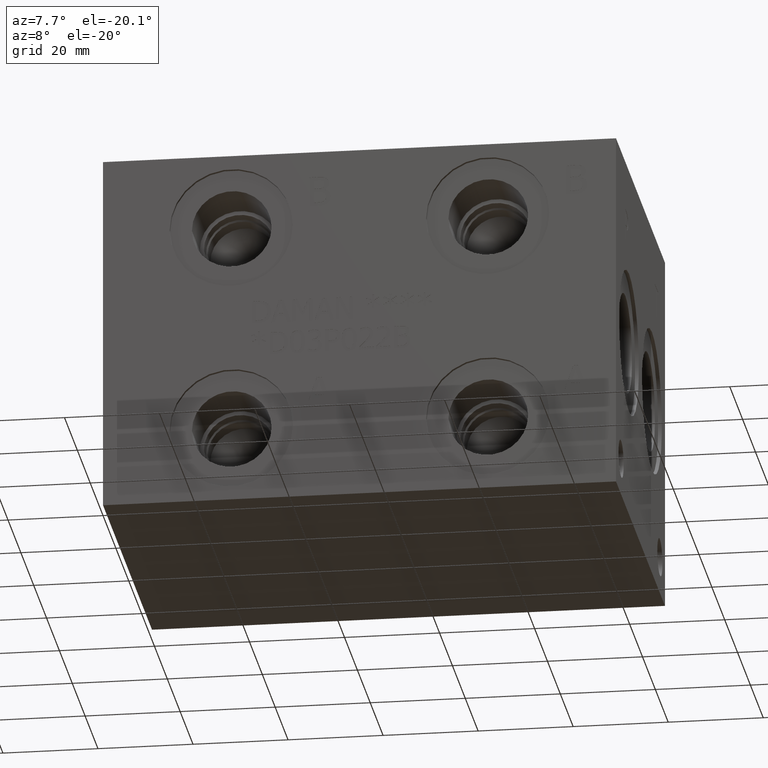
[diagram: clean part render]
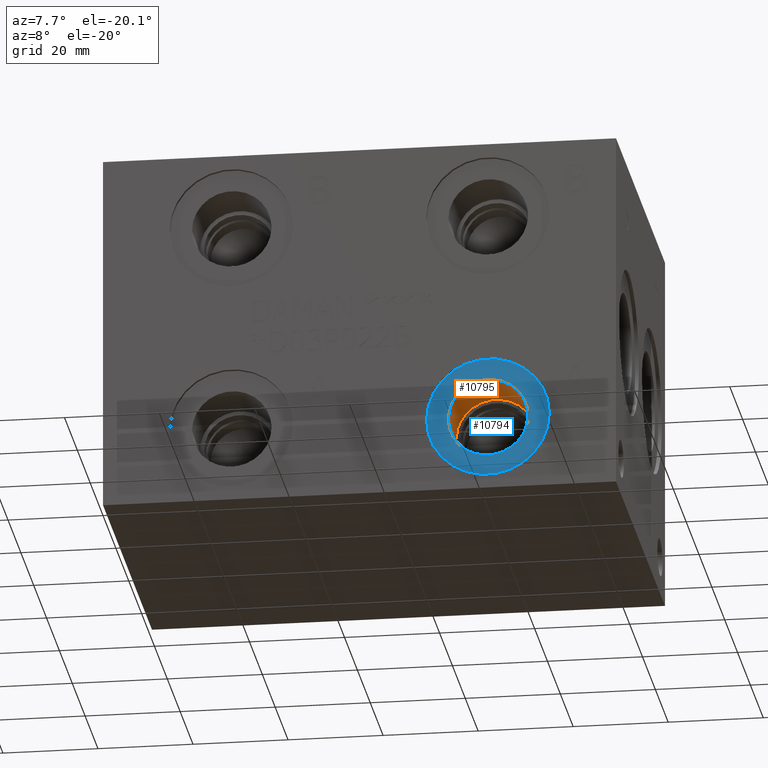
[diagram: same view with the hole feature highlighted: cylindrical wall and planar end face, labeled with their STEP entity ids]
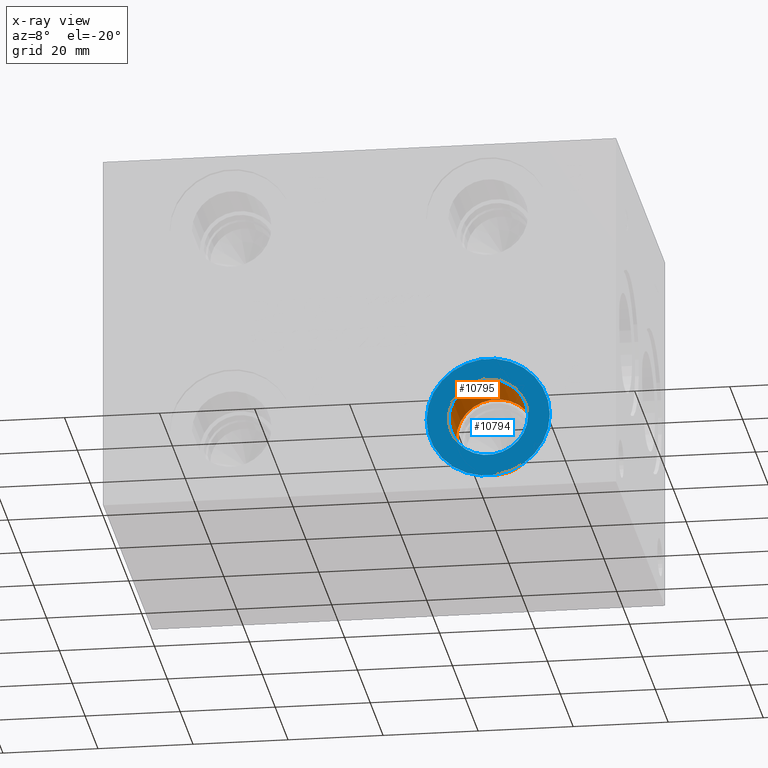
[diagram: x-ray of the same camera — body ghosted, the hole faces saturated]
A machine part, auxiliary view. The highlighted faces form one hole feature of diameter 16.764 mm: the cylindrical wall (entity #10795, orange) and its adjacent planar end face (entity #10794, blue) — they share a circular edge in the B-rep.
The next image is the same camera in x-ray (body ghosted, the hole faces saturated) — the bore reads through the body.
Wall:
#77=CYLINDRICAL_SURFACE('',#11306,8.38200000000001);
#171=CIRCLE('',#11305,8.38200000000001);
#172=CIRCLE('',#11307,8.38200000000001);
#1291=FACE_OUTER_BOUND('',#1946,.T.);
#1946=EDGE_LOOP('',(#9200,#9201,#9202,#9203));
#3038=LINE('',#18272,#4078);
#4078=VECTOR('',#13259,8.38200000000001);
#5028=VERTEX_POINT('',#18268);
#5029=VERTEX_POINT('',#18271);
#6447=EDGE_CURVE('',#5028,#5028,#171,.T.);
#6448=EDGE_CURVE('',#5028,#5029,#3038,.T.);
#6449=EDGE_CURVE('',#5029,#5029,#172,.T.);
#9200=ORIENTED_EDGE('',*,*,#6447,.F.);
#9201=ORIENTED_EDGE('',*,*,#6448,.T.);
#9202=ORIENTED_EDGE('',*,*,#6449,.T.);
#9203=ORIENTED_EDGE('',*,*,#6448,.F.);
#10795=ADVANCED_FACE('',(#1291),#77,.F.);
#11305=AXIS2_PLACEMENT_3D('',#18269,#13255,#13256);
#11306=AXIS2_PLACEMENT_3D('',#18270,#13257,#13258);
#11307=AXIS2_PLACEMENT_3D('',#18273,#13260,#13261);
#13255=DIRECTION('center_axis',(0.,1.,0.));
#13256=DIRECTION('ref_axis',(1.,0.,0.));
#13257=DIRECTION('center_axis',(0.,1.,0.));
#13258=DIRECTION('ref_axis',(1.,0.,0.));
#13259=DIRECTION('',(0.,1.,0.));
#13260=DIRECTION('center_axis',(0.,1.,0.));
#13261=DIRECTION('ref_axis',(1.,0.,0.));
#18268=CARTESIAN_POINT('',(72.5678,0.7874,15.875));
#18269=CARTESIAN_POINT('Origin',(80.9498,0.7874,15.875));
#18270=CARTESIAN_POINT('Origin',(80.9498,6.8834,15.875));
#18271=CARTESIAN_POINT('',(72.5678,12.9794,15.875));
#18272=CARTESIAN_POINT('',(72.5678,6.8834,15.875));
#18273=CARTESIAN_POINT('Origin',(80.9498,12.9794,15.875));
End face:
#170=CIRCLE('',#11303,12.9667);
#171=CIRCLE('',#11305,8.38200000000001);
#317=FACE_BOUND('',#1945,.T.);
#1290=FACE_OUTER_BOUND('',#1944,.T.);
#1944=EDGE_LOOP('',(#9198));
#1945=EDGE_LOOP('',(#9199));
#5027=VERTEX_POINT('',#18264);
#5028=VERTEX_POINT('',#18268);
#6446=EDGE_CURVE('',#5027,#5027,#170,.T.);
#6447=EDGE_CURVE('',#5028,#5028,#171,.T.);
#9198=ORIENTED_EDGE('',*,*,#6446,.F.);
#9199=ORIENTED_EDGE('',*,*,#6447,.T.);
#9841=PLANE('',#11304);
#10794=ADVANCED_FACE('',(#1290,#317),#9841,.F.);
#11303=AXIS2_PLACEMENT_3D('',#18266,#13251,#13252);
#11304=AXIS2_PLACEMENT_3D('',#18267,#13253,#13254);
#11305=AXIS2_PLACEMENT_3D('',#18269,#13255,#13256);
#13251=DIRECTION('center_axis',(0.,1.,0.));
#13252=DIRECTION('ref_axis',(1.,0.,0.));
#13253=DIRECTION('center_axis',(0.,1.,0.));
#13254=DIRECTION('ref_axis',(0.,0.,1.));
#13255=DIRECTION('center_axis',(0.,1.,0.));
#13256=DIRECTION('ref_axis',(1.,0.,0.));
#18264=CARTESIAN_POINT('',(67.9831,0.7874,15.875));
#18266=CARTESIAN_POINT('Origin',(80.9498,0.7874,15.875));
#18267=CARTESIAN_POINT('Origin',(89.3318,0.7874,15.875));
#18268=CARTESIAN_POINT('',(72.5678,0.7874,15.875));
#18269=CARTESIAN_POINT('Origin',(80.9498,0.7874,15.875));